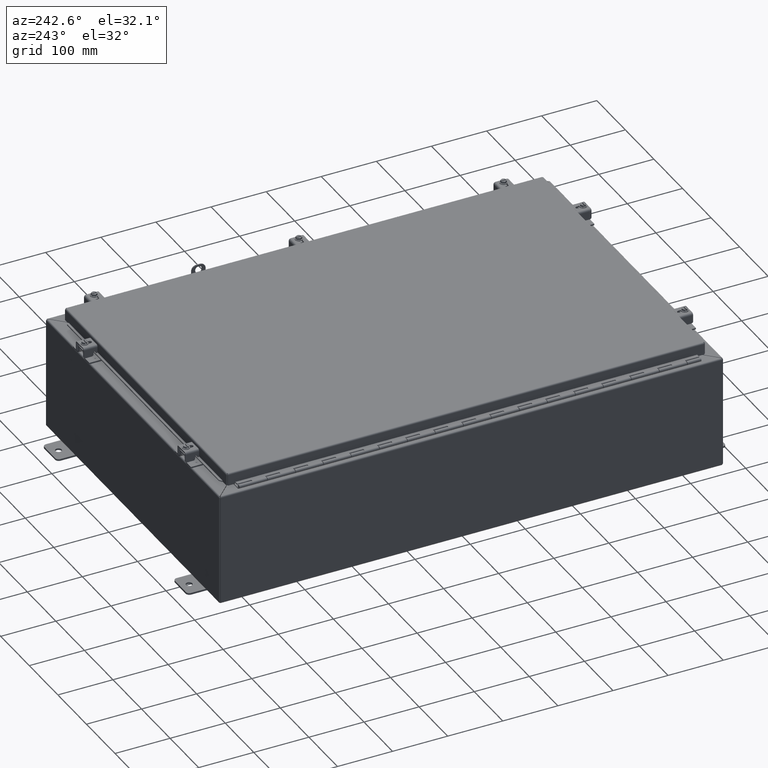
[diagram: clean part render]
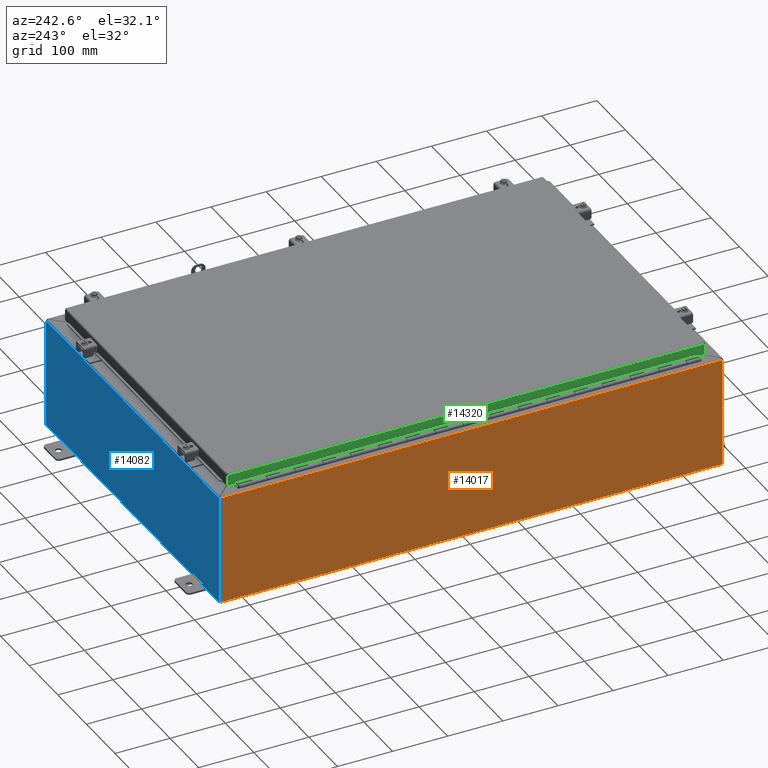
[diagram: same view with three faces highlighted in distinct colors, each labeled with its STEP entity id]
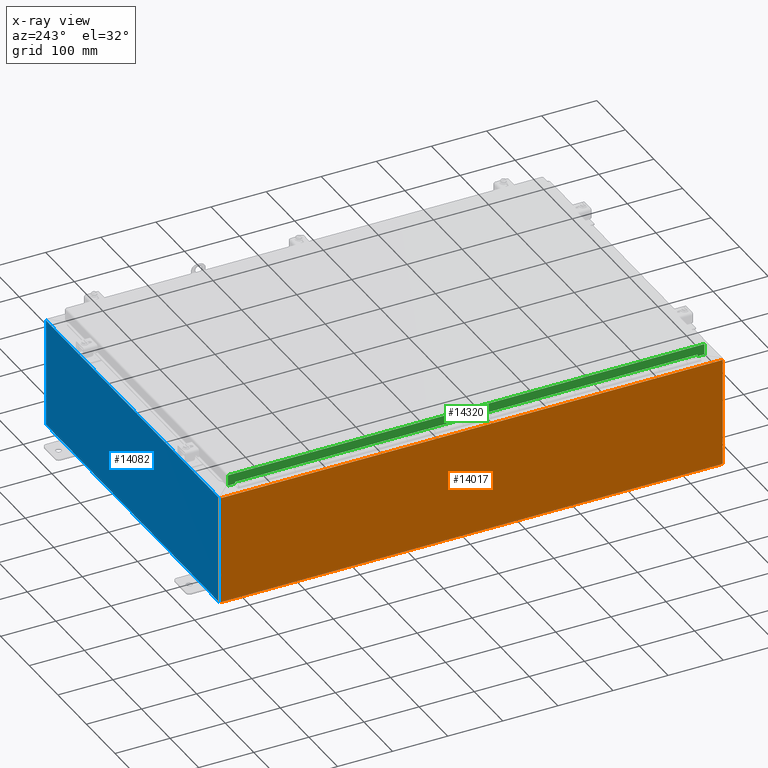
[diagram: x-ray of the same camera — body ghosted, the three highlighted faces saturated]
A machine part, auxiliary view with three faces highlighted in distinct colors.
The next image is the same camera in x-ray (body ghosted, the three faces saturated) — at least one of them is partly hidden behind the body in this view.
Their STEP definitions:

[orange] entity #14017 — the highlighted planar face has unit normal (1, 0, 0).
#1293=PLANE('',#14858);
#1745=FACE_OUTER_BOUND('',#2545,.T.);
#2545=EDGE_LOOP('',(#9949,#9950,#9951,#9952));
#3400=LINE('',#20008,#4709);
#3402=LINE('',#20029,#4711);
#3403=LINE('',#20030,#4712);
#3404=LINE('',#20031,#4713);
#4709=VECTOR('',#16222,35.8505857864376);
#4711=VECTOR('',#16226,35.8505857864376);
#4712=VECTOR('',#16227,7.7895);
#4713=VECTOR('',#16228,7.7895);
#6497=VERTEX_POINT('',#20006);
#6498=VERTEX_POINT('',#20007);
#6501=VERTEX_POINT('',#20027);
#6502=VERTEX_POINT('',#20028);
#7839=EDGE_CURVE('',#6497,#6498,#3400,.T.);
#7843=EDGE_CURVE('',#6501,#6502,#3402,.T.);
#7844=EDGE_CURVE('',#6497,#6502,#3403,.T.);
#7845=EDGE_CURVE('',#6501,#6498,#3404,.T.);
#9949=ORIENTED_EDGE('',*,*,#7843,.T.);
#9950=ORIENTED_EDGE('',*,*,#7844,.F.);
#9951=ORIENTED_EDGE('',*,*,#7839,.T.);
#9952=ORIENTED_EDGE('',*,*,#7845,.F.);
#14017=ADVANCED_FACE('',(#1745),#1293,.F.);
#14858=AXIS2_PLACEMENT_3D('',#20026,#16224,#16225);
#16222=DIRECTION('',(1.55646545766917E-16,-1.,1.26536709533622E-33));
#16224=DIRECTION('center_axis',(1.,1.55646545766917E-16,5.42873053007367E-15));
#16225=DIRECTION('ref_axis',(4.51194637207663E-15,-1.554117969729E-16,-1.));
#16226=DIRECTION('',(-1.55646545766918E-16,1.,1.56059505536474E-16));
#16227=DIRECTION('',(-5.39030285815812E-15,-8.38164711797325E-31,1.));
#16228=DIRECTION('',(5.39030285815812E-15,8.38164711797325E-31,-1.));
#20006=CARTESIAN_POINT('',(-12.,17.9252928932188,0.105250000000004));
#20007=CARTESIAN_POINT('',(-12.,-17.9252928932188,0.10525));
#20008=CARTESIAN_POINT('',(-12.,4.66408024609222E-15,0.105250000000001));
#20026=CARTESIAN_POINT('Origin',(-12.,3.74970765849057E-15,4.02153807738616));
#20027=CARTESIAN_POINT('',(-12.,-17.9252928932188,7.89475));
#20028=CARTESIAN_POINT('',(-12.,17.9252928932188,7.89475000000001));
#20029=CARTESIAN_POINT('',(-12.,-8.9626464466094,7.89475));
#20030=CARTESIAN_POINT('',(-12.,17.9252928932188,0.105250000000004));
#20031=CARTESIAN_POINT('',(-12.,-17.9252928932188,0.10525));

[blue] entity #14082 — the highlighted planar face has unit normal (-0, -1, 0).
#1321=PLANE('',#14940);
#1810=FACE_OUTER_BOUND('',#2610,.T.);
#2610=EDGE_LOOP('',(#10254,#10255,#10256,#10257));
#3521=LINE('',#21201,#4830);
#3522=LINE('',#21211,#4831);
#3523=LINE('',#21213,#4832);
#3524=LINE('',#21214,#4833);
#4830=VECTOR('',#16507,23.8505857864376);
#4831=VECTOR('',#16510,7.7895);
#4832=VECTOR('',#16511,23.8505857864376);
#4833=VECTOR('',#16512,7.7895);
#6663=VERTEX_POINT('',#21192);
#6664=VERTEX_POINT('',#21200);
#6665=VERTEX_POINT('',#21210);
#6666=VERTEX_POINT('',#21212);
#8072=EDGE_CURVE('',#6664,#6663,#3521,.T.);
#8074=EDGE_CURVE('',#6665,#6663,#3522,.T.);
#8075=EDGE_CURVE('',#6665,#6666,#3523,.T.);
#8076=EDGE_CURVE('',#6664,#6666,#3524,.T.);
#10254=ORIENTED_EDGE('',*,*,#8072,.T.);
#10255=ORIENTED_EDGE('',*,*,#8074,.F.);
#10256=ORIENTED_EDGE('',*,*,#8075,.T.);
#10257=ORIENTED_EDGE('',*,*,#8076,.F.);
#14082=ADVANCED_FACE('',(#1810),#1321,.F.);
#14940=AXIS2_PLACEMENT_3D('',#21209,#16508,#16509);
#16507=DIRECTION('',(1.,-2.19572018458735E-18,0.));
#16508=DIRECTION('center_axis',(-2.19572018458735E-18,-1.,5.25383298468934E-15));
#16509=DIRECTION('ref_axis',(1.,0.,0.));
#16510=DIRECTION('',(0.,5.39030285815812E-15,1.));
#16511=DIRECTION('',(-1.,2.19572018458735E-18,-1.18355967866966E-32));
#16512=DIRECTION('',(0.,-5.39030285815812E-15,-1.));
#21192=CARTESIAN_POINT('',(11.9252928932188,18.,7.89475));
#21200=CARTESIAN_POINT('',(-11.9252928932188,18.,7.89475));
#21201=CARTESIAN_POINT('',(-5.96264644660941,18.,7.89475));
#21209=CARTESIAN_POINT('Origin',(-3.49676543189026E-16,18.,4.02235902495405));
#21210=CARTESIAN_POINT('',(11.9252928932188,18.,0.105250000000001));
#21211=CARTESIAN_POINT('',(11.9252928932188,18.,0.105250000000001));
#21212=CARTESIAN_POINT('',(-11.9252928932188,18.,0.105250000000001));
#21213=CARTESIAN_POINT('',(-8.74122302572759E-16,18.,0.105249999999998));
#21214=CARTESIAN_POINT('',(-11.9252928932188,18.,0.105250000000001));

[green] entity #14320 — the highlighted planar face has unit normal (1, 0, 0).
#1445=PLANE('',#15181);
#2048=FACE_OUTER_BOUND('',#2858,.T.);
#2858=EDGE_LOOP('',(#11314,#11315,#11316,#11317,#11318,#11319,#11320,#11321));
#3715=LINE('',#23181,#5024);
#3718=LINE('',#23187,#5027);
#3722=LINE('',#23194,#5031);
#3728=LINE('',#23207,#5037);
#3846=LINE('',#23641,#5155);
#3852=LINE('',#23802,#5161);
#3855=LINE('',#23808,#5164);
#3856=LINE('',#23835,#5165);
#5024=VECTOR('',#17033,33.03125);
#5027=VECTOR('',#17038,0.125);
#5031=VECTOR('',#17044,0.125);
#5037=VECTOR('',#17054,0.503417893218824);
#5155=VECTOR('',#17298,0.769749999999998);
#5161=VECTOR('',#17312,0.503417893218791);
#5164=VECTOR('',#17319,0.769750000000009);
#5165=VECTOR('',#17324,34.0380857864376);
#6809=VERTEX_POINT('',#23178);
#6810=VERTEX_POINT('',#23180);
#6812=VERTEX_POINT('',#23186);
#6814=VERTEX_POINT('',#23192);
#6819=VERTEX_POINT('',#23206);
#6896=VERTEX_POINT('',#23501);
#6907=VERTEX_POINT('',#23800);
#6908=VERTEX_POINT('',#23806);
#8365=EDGE_CURVE('',#6810,#6809,#3715,.T.);
#8368=EDGE_CURVE('',#6812,#6810,#3718,.T.);
#8372=EDGE_CURVE('',#6809,#6814,#3722,.T.);
#8378=EDGE_CURVE('',#6819,#6812,#3728,.T.);
#8521=EDGE_CURVE('',#6896,#6819,#3846,.T.);
#8536=EDGE_CURVE('',#6814,#6907,#3852,.T.);
#8539=EDGE_CURVE('',#6907,#6908,#3855,.T.);
#8541=EDGE_CURVE('',#6908,#6896,#3856,.T.);
#11314=ORIENTED_EDGE('',*,*,#8372,.T.);
#11315=ORIENTED_EDGE('',*,*,#8536,.T.);
#11316=ORIENTED_EDGE('',*,*,#8539,.T.);
#11317=ORIENTED_EDGE('',*,*,#8541,.T.);
#11318=ORIENTED_EDGE('',*,*,#8521,.T.);
#11319=ORIENTED_EDGE('',*,*,#8378,.T.);
#11320=ORIENTED_EDGE('',*,*,#8368,.T.);
#11321=ORIENTED_EDGE('',*,*,#8365,.T.);
#14320=ADVANCED_FACE('',(#2048),#1445,.F.);
#15181=AXIS2_PLACEMENT_3D('',#23837,#17326,#17327);
#17033=DIRECTION('',(-1.64049757545318E-16,1.,-1.70869199107956E-16));
#17038=DIRECTION('',(5.77924949258957E-15,-2.7673153952469E-16,-1.));
#17044=DIRECTION('',(-5.77924949258957E-15,2.7673153952469E-16,1.));
#17054=DIRECTION('',(0.,1.,0.));
#17298=DIRECTION('',(-5.45127446348596E-15,0.,1.));
#17312=DIRECTION('',(0.,1.,0.));
#17319=DIRECTION('',(5.45127446348589E-15,-3.63418297565726E-15,-1.));
#17324=DIRECTION('',(1.64049757545319E-16,-1.,2.14845765901815E-33));
#17326=DIRECTION('center_axis',(1.,1.64049757545319E-16,5.77924949258957E-15));
#17327=DIRECTION('ref_axis',(4.51194637207664E-15,-1.63651179262139E-16,
-1.));
#23178=CARTESIAN_POINT('',(-11.1875,16.515625,0.749999999999994));
#23180=CARTESIAN_POINT('',(-11.1875,-16.515625,0.75));
#23181=CARTESIAN_POINT('',(-11.1875,8.2578125,0.749999999999996));
#23186=CARTESIAN_POINT('',(-11.1875,-16.515625,0.875));
#23187=CARTESIAN_POINT('',(-11.1875,-16.515625,0.603431693890063));
#23192=CARTESIAN_POINT('',(-11.1875,16.515625,0.874999999999994));
#23194=CARTESIAN_POINT('',(-11.1875,16.515625,0.665931693890056));
#23206=CARTESIAN_POINT('',(-11.1875,-17.0190428932188,0.875));
#23207=CARTESIAN_POINT('',(-11.1875,-98.5324008743091,0.875));
#23501=CARTESIAN_POINT('',(-11.1875,-17.0190428932188,0.105250000000004));
#23641=CARTESIAN_POINT('',(-11.1875,-17.0190428932188,0.105250000000002));
#23800=CARTESIAN_POINT('',(-11.1875,17.0190428932188,0.875000000000005));
#23802=CARTESIAN_POINT('',(-11.1875,-98.5324008743091,0.875));
#23806=CARTESIAN_POINT('',(-11.1875,17.0190428932188,0.105249999999994));
#23808=CARTESIAN_POINT('',(-11.1875,17.0190428932188,0.105249999999996));
#23835=CARTESIAN_POINT('',(-11.1875,6.05006096222654E-18,0.105249999999998));
#23837=CARTESIAN_POINT('Origin',(-11.1875,2.93494791158057E-17,0.456863387780123));